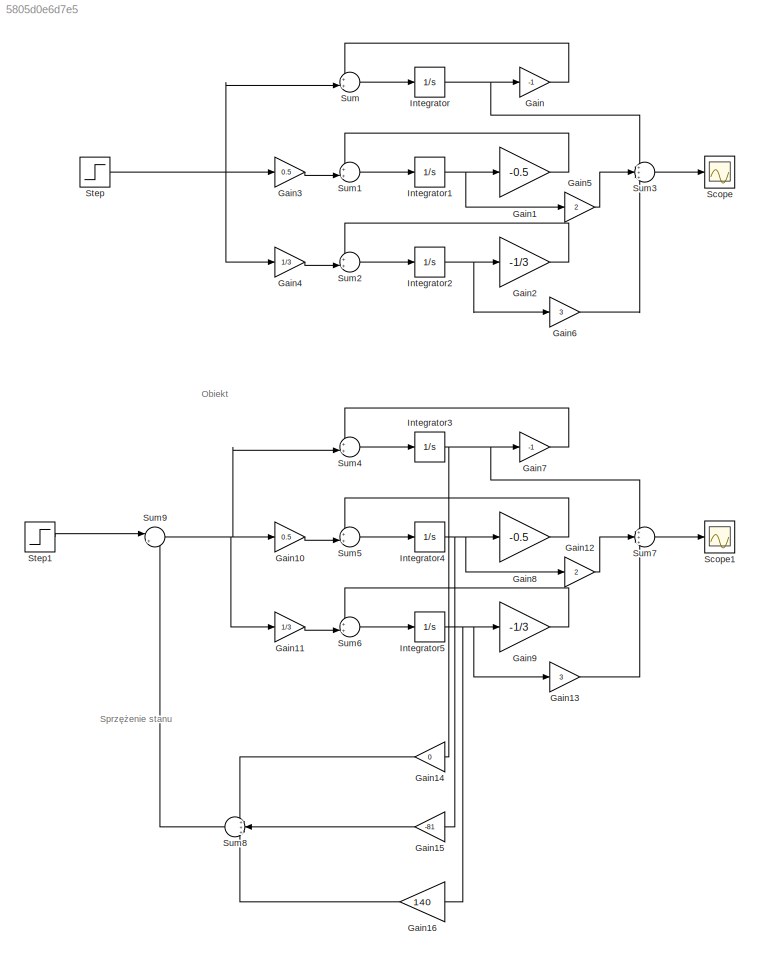
MODEL slx_5805d0e6d7e5
KIND model
CONFIG AbsTol = auto
CONFIG EnableMultiTasking = off
CONFIG FixedStep = auto
CONFIG MaxStep = auto
CONFIG MinStep = auto
CONFIG RelTol = 1e-3
CONFIG SampleTimeConstraint = Unconstrained
CONFIG SolverName = VariableStepAuto
CONFIG StartTime = 0.0
CONFIG StopTime = 40
BLOCK [Gain] Gain
  Gain = -1
BLOCK [Gain] Gain1
  Gain = -0.5
BLOCK [Gain] Gain10
  Gain = 0.5
BLOCK [Gain] Gain11
  Gain = 1/3
BLOCK [Gain] Gain12
  Gain = 2
BLOCK [Gain] Gain13
  Gain = 3
BLOCK [Gain] Gain14
  Gain = 0
  NameLocation = top
BLOCK [Gain] Gain15
  Gain = -81
  NameLocation = top
BLOCK [Gain] Gain16
  Gain = 140
  NameLocation = top
BLOCK [Gain] Gain2
  Gain = -1/3
BLOCK [Gain] Gain3
  Gain = 0.5
BLOCK [Gain] Gain4
  Gain = 1/3
BLOCK [Gain] Gain5
  Gain = 2
BLOCK [Gain] Gain6
  Gain = 3
BLOCK [Gain] Gain7
  Gain = -1
BLOCK [Gain] Gain8
  Gain = -0.5
BLOCK [Gain] Gain9
  Gain = -1/3
BLOCK [Integrator] Integrator
BLOCK [Integrator] Integrator1
BLOCK [Integrator] Integrator2
BLOCK [Integrator] Integrator3
BLOCK [Integrator] Integrator4
BLOCK [Integrator] Integrator5
BLOCK [Scope] Scope
  Floating = off
  NumInputPorts = 1
  ScopeSpecificationString = Simulink.scopes.TimeScopeBlockCfg('CurrentConfiguration', extmgr.ConfigurationSet(extmgr.Configuration('Core','General UI',true),extmgr.Configuration('Core','Source UI',true),extmgr.Configuration('Sources','WiredSimulink',true),extmgr.Configuration('Visuals','Time Domain',true,'SerializedDisplays',{struct('MinYLimReal','-0.75','MaxYLimReal','6.74999','YLabelReal','','MinYLimMag','0.00000','MaxYLim...<+1347ch>
BLOCK [Scope] Scope1
  Floating = off
  NumInputPorts = 1
  ScopeSpecificationString = Simulink.scopes.TimeScopeBlockCfg('CurrentConfiguration', extmgr.ConfigurationSet(extmgr.Configuration('Core','General UI',true),extmgr.Configuration('Core','Source UI',true),extmgr.Configuration('Sources','WiredSimulink',true,'DataLoggingVariableName','ScopeData1'),extmgr.Configuration('Visuals','Time Domain',true,'SerializedDisplays',{struct('MinYLimReal','-0.04272','MaxYLimReal','0.38449','YLab...<+1418ch>
BLOCK [Step] Step
  SampleTime = 0
BLOCK [Step] Step1
  SampleTime = 0
BLOCK [Sum] Sum
  Inputs = ++|
BLOCK [Sum] Sum1
  Inputs = ++|
BLOCK [Sum] Sum2
  Inputs = ++|
BLOCK [Sum] Sum3
  Inputs = +++
BLOCK [Sum] Sum4
  Inputs = ++|
BLOCK [Sum] Sum5
  Inputs = ++|
BLOCK [Sum] Sum6
  Inputs = ++|
BLOCK [Sum] Sum7
  Inputs = +++
BLOCK [Sum] Sum8
  Inputs = +++
  NameLocation = top
BLOCK [Sum] Sum9
  Inputs = |+-
ANNOTATION (root): Obiekt
ANNOTATION (root): Sprzężenie stanu
LINE Gain10:1 -> Sum5:2
LINE Gain11:1 -> Sum6:2
LINE Gain12:1 -> Sum7:2
LINE Gain13:1 -> Sum7:3
LINE Gain14:1 -> Sum8:1
LINE Gain15:1 -> Sum8:2
LINE Gain16:1 -> Sum8:3
LINE Gain1:1 -> Sum1:1
LINE Gain2:1 -> Sum2:1
LINE Gain3:1 -> Sum1:2
LINE Gain4:1 -> Sum2:2
LINE Gain5:1 -> Sum3:2
LINE Gain6:1 -> Sum3:3
LINE Gain7:1 -> Sum4:1
LINE Gain8:1 -> Sum5:1
LINE Gain9:1 -> Sum6:1
LINE Gain:1 -> Sum:1
NET Integrator1:1 -> Gain1:1, Gain5:1
NET Integrator2:1 -> Gain2:1, Gain6:1
NET Integrator3:1 -> Gain14:1, Gain7:1, Sum7:1
NET Integrator4:1 -> Gain12:1, Gain15:1, Gain8:1
NET Integrator5:1 -> Gain13:1, Gain16:1, Gain9:1
NET Integrator:1 -> Gain:1, Sum3:1
LINE Step1:1 -> Sum9:1
NET Step:1 -> Gain3:1, Gain4:1, Sum:2
LINE Sum1:1 -> Integrator1:1
LINE Sum2:1 -> Integrator2:1
LINE Sum3:1 -> Scope:1
LINE Sum4:1 -> Integrator3:1
LINE Sum5:1 -> Integrator4:1
LINE Sum6:1 -> Integrator5:1
LINE Sum7:1 -> Scope1:1
LINE Sum8:1 -> Sum9:2
NET Sum9:1 -> Gain10:1, Gain11:1, Sum4:2
LINE Sum:1 -> Integrator:1
note: NET lines group one-source signal fan-out (src -> all destinations, sorted); 1:1 wires keep LINE
